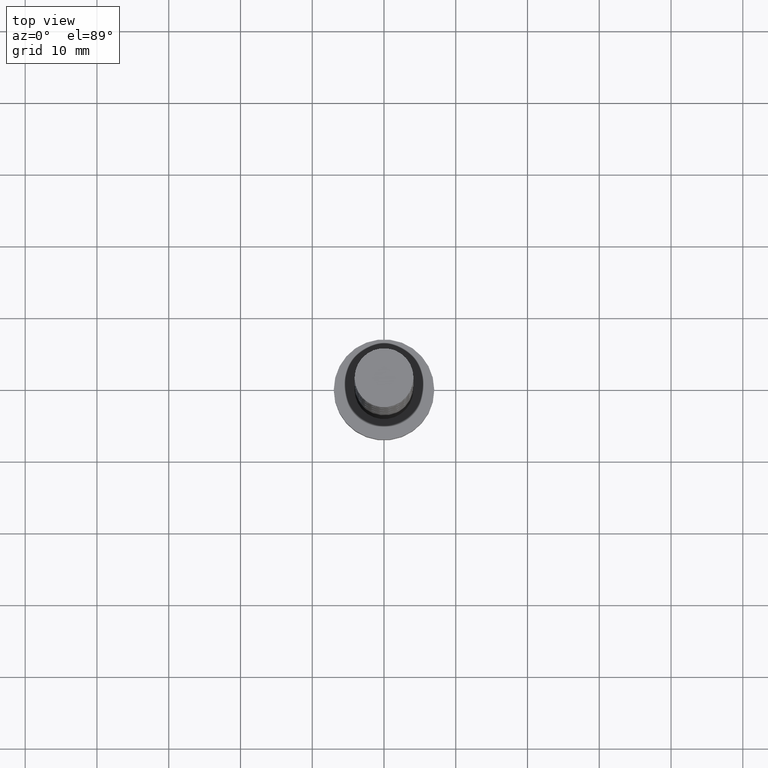
[diagram: clean part render]
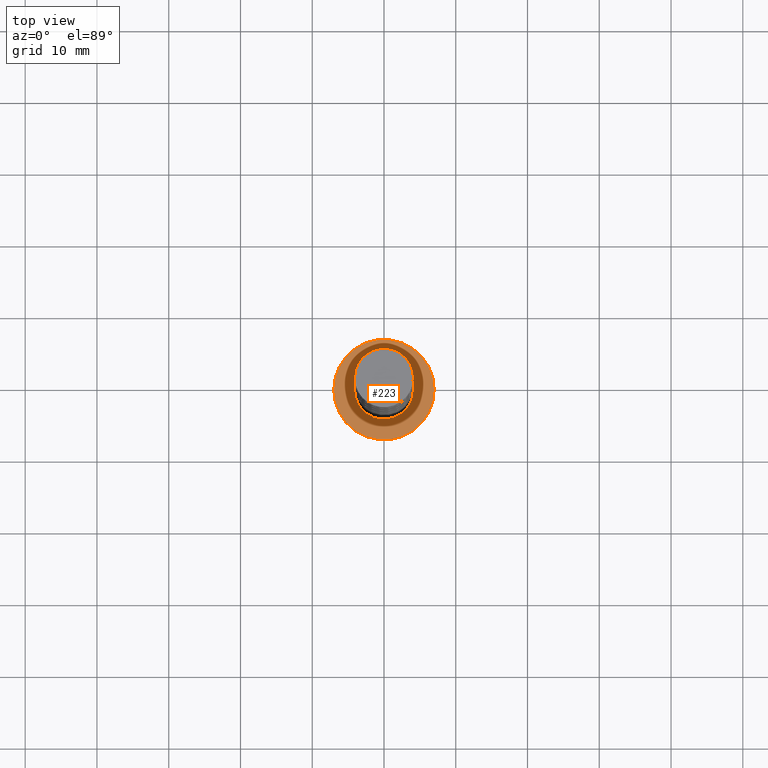
[diagram: same view with one face highlighted and labeled with its STEP entity id]
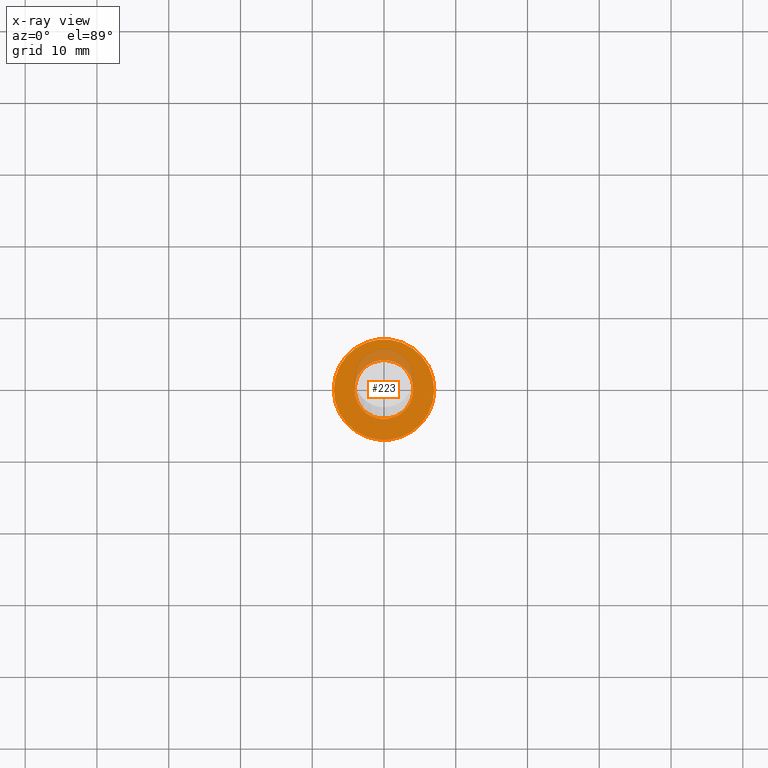
[diagram: x-ray of the same camera — body ghosted, the highlighted face saturated]
A machine part, top view. The second image highlights one B-rep face of the part: STEP entity #223.
The next image is the same camera in x-ray: the body ghosted, the highlighted face saturated — about 14% of this face is hidden behind the body in this view.
In plain terms, the highlighted planar face has unit normal (0, 0, 1).
Its self-contained STEP definition (entity closure, byte-faithful):
#39 = DIRECTION ( 'NONE',  ( 0.000000000000000000, 0.000000000000000000, 1.000000000000000000 ) ) ;
#64 = CIRCLE ( 'NONE', #622, 7.000000000000000000 ) ;
#117 = ORIENTED_EDGE ( 'NONE', *, *, #259, .F. ) ;
#144 = FACE_BOUND ( 'NONE', #1451, .T. ) ;
#175 = PLANE ( 'NONE',  #432 ) ;
#223 = ADVANCED_FACE ( 'NONE', ( #144, #854 ), #175, .T. ) ;
#225 = DIRECTION ( 'NONE',  ( 0.000000000000000000, 0.000000000000000000, 1.000000000000000000 ) ) ;
#259 = EDGE_CURVE ( 'NONE', #1120, #338, #1257, .T. ) ;
#285 = EDGE_CURVE ( 'NONE', #847, #891, #64, .T. ) ;
#323 = CARTESIAN_POINT ( 'NONE',  ( 0.000000000000000000, 0.000000000000000000, 5.000000000000000000 ) ) ;
#324 = ORIENTED_EDGE ( 'NONE', *, *, #770, .F. ) ;
#338 = VERTEX_POINT ( 'NONE', #1299 ) ;
#349 = DIRECTION ( 'NONE',  ( 0.000000000000000000, 0.000000000000000000, 1.000000000000000000 ) ) ;
#352 = EDGE_CURVE ( 'NONE', #891, #847, #1342, .T. ) ;
#366 = AXIS2_PLACEMENT_3D ( 'NONE', #897, #918, #558 ) ;
#387 = DIRECTION ( 'NONE',  ( 1.000000000000000000, 0.000000000000000000, -0.000000000000000000 ) ) ;
#431 = EDGE_LOOP ( 'NONE', ( #754, #1312 ) ) ;
#432 = AXIS2_PLACEMENT_3D ( 'NONE', #960, #39, #387 ) ;
#537 = DIRECTION ( 'NONE',  ( 1.000000000000000000, 0.000000000000000000, 0.000000000000000000 ) ) ;
#554 = DIRECTION ( 'NONE',  ( 0.000000000000000000, 0.000000000000000000, 1.000000000000000000 ) ) ;
#558 = DIRECTION ( 'NONE',  ( 1.000000000000000000, 0.000000000000000000, 0.000000000000000000 ) ) ;
#562 = CARTESIAN_POINT ( 'NONE',  ( 0.000000000000000000, 0.000000000000000000, 5.000000000000000000 ) ) ;
#591 = DIRECTION ( 'NONE',  ( 1.000000000000000000, 0.000000000000000000, 0.000000000000000000 ) ) ;
#622 = AXIS2_PLACEMENT_3D ( 'NONE', #562, #349, #591 ) ;
#685 = CIRCLE ( 'NONE', #896, 4.099999999999999645 ) ;
#730 = AXIS2_PLACEMENT_3D ( 'NONE', #323, #554, #537 ) ;
#754 = ORIENTED_EDGE ( 'NONE', *, *, #285, .T. ) ;
#770 = EDGE_CURVE ( 'NONE', #338, #1120, #685, .T. ) ;
#847 = VERTEX_POINT ( 'NONE', #947 ) ;
#854 = FACE_OUTER_BOUND ( 'NONE', #431, .T. ) ;
#891 = VERTEX_POINT ( 'NONE', #1369 ) ;
#896 = AXIS2_PLACEMENT_3D ( 'NONE', #1248, #225, #1034 ) ;
#897 = CARTESIAN_POINT ( 'NONE',  ( 0.000000000000000000, 0.000000000000000000, 5.000000000000000000 ) ) ;
#918 = DIRECTION ( 'NONE',  ( 0.000000000000000000, 0.000000000000000000, 1.000000000000000000 ) ) ;
#947 = CARTESIAN_POINT ( 'NONE',  ( -7.000000000000000000, 0.000000000000000000, 5.000000000000000000 ) ) ;
#960 = CARTESIAN_POINT ( 'NONE',  ( 0.000000000000000000, 0.000000000000000000, 5.000000000000000000 ) ) ;
#962 = CARTESIAN_POINT ( 'NONE',  ( -4.099999999999999645, 0.000000000000000000, 5.000000000000000000 ) ) ;
#1034 = DIRECTION ( 'NONE',  ( 1.000000000000000000, 0.000000000000000000, 0.000000000000000000 ) ) ;
#1120 = VERTEX_POINT ( 'NONE', #962 ) ;
#1248 = CARTESIAN_POINT ( 'NONE',  ( 0.000000000000000000, 0.000000000000000000, 5.000000000000000000 ) ) ;
#1257 = CIRCLE ( 'NONE', #730, 4.099999999999999645 ) ;
#1299 = CARTESIAN_POINT ( 'NONE',  ( 4.099999999999999645, 5.021051876504147385E-16, 5.000000000000000000 ) ) ;
#1312 = ORIENTED_EDGE ( 'NONE', *, *, #352, .T. ) ;
#1342 = CIRCLE ( 'NONE', #366, 7.000000000000000000 ) ;
#1369 = CARTESIAN_POINT ( 'NONE',  ( 7.000000000000000000, 8.572527594031473190E-16, 5.000000000000000000 ) ) ;
#1451 = EDGE_LOOP ( 'NONE', ( #117, #324 ) ) ;